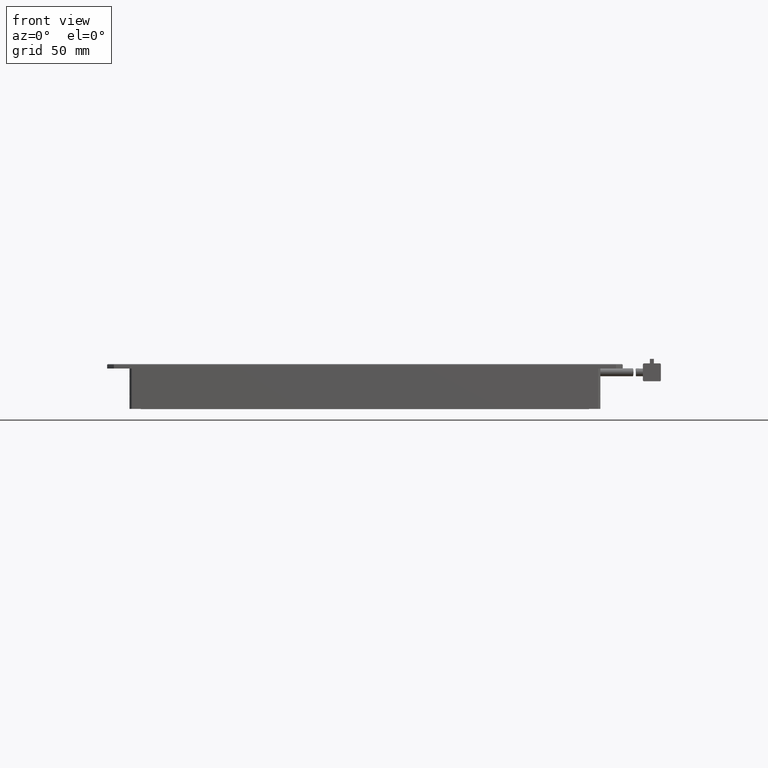
[diagram: clean part render]
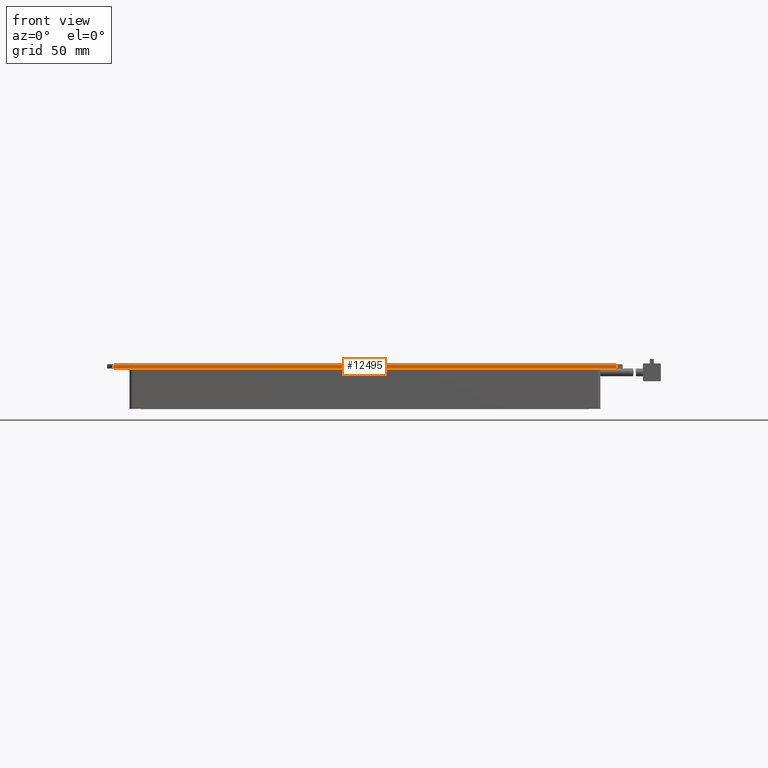
[diagram: same view with one face highlighted and labeled with its STEP entity id]
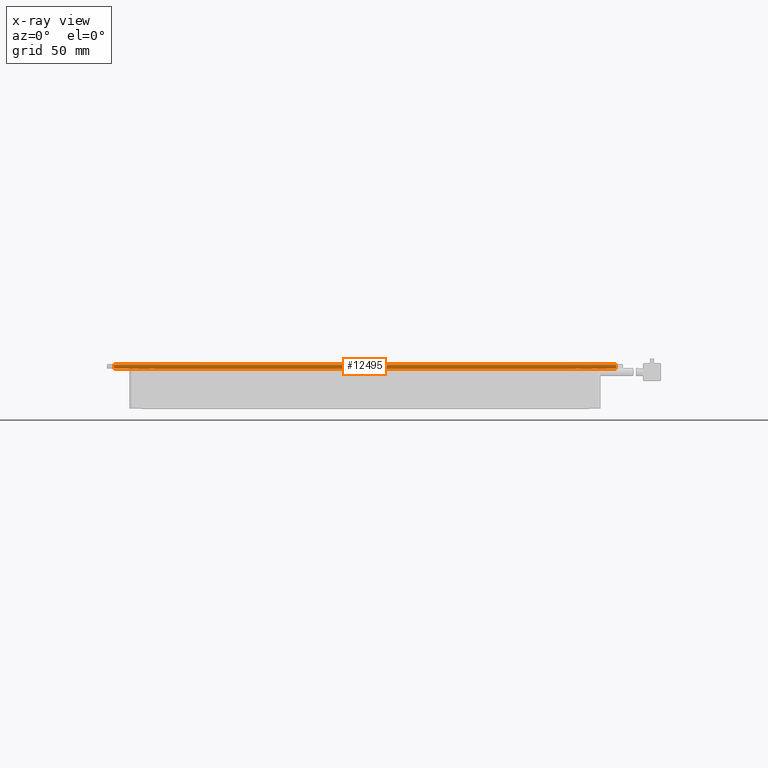
[diagram: x-ray of the same camera — body ghosted, the highlighted face saturated]
A machine part, front view. The second image highlights one B-rep face of the part: STEP entity #12495.
The next image is the same camera in x-ray: the body ghosted, the highlighted face saturated — about 0% of this face is hidden behind the body in this view.
In plain terms, the highlighted planar face has unit normal (0, 1, 0).
Its self-contained STEP definition (entity closure, byte-faithful):
#32 = VECTOR ( 'NONE', #21816, 1000.000000000000000 ) ;
#1267 = VERTEX_POINT ( 'NONE', #5427 ) ;
#1363 = EDGE_CURVE ( 'NONE', #7415, #1267, #2441, .T. ) ;
#2441 = LINE ( 'NONE', #9673, #6569 ) ;
#2877 = EDGE_CURVE ( 'NONE', #9953, #1267, #13340, .T. ) ;
#4732 = FACE_OUTER_BOUND ( 'NONE', #5302, .T. ) ;
#5222 = CARTESIAN_POINT ( 'NONE',  ( -93.33424941752387800, -139.3787539827808400, 1.999999999976353100 ) ) ;
#5302 = EDGE_LOOP ( 'NONE', ( #19197, #6321, #19000, #9517 ) ) ;
#5427 = CARTESIAN_POINT ( 'NONE',  ( 130.6657505824760800, -139.3787539827808400, 1.699999999976331800 ) ) ;
#6321 = ORIENTED_EDGE ( 'NONE', *, *, #18893, .F. ) ;
#6569 = VECTOR ( 'NONE', #9990, 1000.000000000000000 ) ;
#7359 = DIRECTION ( 'NONE',  ( 1.000000000000000000, 0.0000000000000000000, -0.0000000000000000000 ) ) ;
#7415 = VERTEX_POINT ( 'NONE', #17440 ) ;
#7558 = VECTOR ( 'NONE', #13866, 1000.000000000000000 ) ;
#7992 = CARTESIAN_POINT ( 'NONE',  ( -93.33424941752387800, -139.3787539827808400, -2.364688306277784600E-011 ) ) ;
#8074 = CARTESIAN_POINT ( 'NONE',  ( -93.33424941752387800, -139.3787539827808400, 1.999999999976353100 ) ) ;
#9181 = VERTEX_POINT ( 'NONE', #7992 ) ;
#9517 = ORIENTED_EDGE ( 'NONE', *, *, #1363, .T. ) ;
#9673 = CARTESIAN_POINT ( 'NONE',  ( 130.6657505824761100, -139.3787539827808400, 1.999999999976353100 ) ) ;
#9810 = DIRECTION ( 'NONE',  ( 0.0000000000000000000, -0.0000000000000000000, 1.000000000000000000 ) ) ;
#9953 = VERTEX_POINT ( 'NONE', #11754 ) ;
#9990 = DIRECTION ( 'NONE',  ( 0.0000000000000000000, 0.0000000000000000000, 1.000000000000000000 ) ) ;
#11488 = PLANE ( 'NONE',  #22014 ) ;
#11754 = CARTESIAN_POINT ( 'NONE',  ( -93.33424941752387800, -139.3787539827808400, 1.699999999976330700 ) ) ;
#12495 = ADVANCED_FACE ( 'NONE', ( #4732 ), #11488, .F. ) ;
#12539 = CARTESIAN_POINT ( 'NONE',  ( 133.6657505824760800, -139.3787539827808400, -2.364688306277784600E-011 ) ) ;
#13340 = LINE ( 'NONE', #19593, #32 ) ;
#13866 = DIRECTION ( 'NONE',  ( 0.0000000000000000000, -0.0000000000000000000, 1.000000000000000000 ) ) ;
#14220 = VECTOR ( 'NONE', #7359, 1000.000000000000000 ) ;
#16725 = LINE ( 'NONE', #5222, #7558 ) ;
#17267 = EDGE_CURVE ( 'NONE', #9181, #7415, #19355, .T. ) ;
#17440 = CARTESIAN_POINT ( 'NONE',  ( 130.6657505824761100, -139.3787539827808400, -2.364720832342959200E-011 ) ) ;
#18893 = EDGE_CURVE ( 'NONE', #9181, #9953, #16725, .T. ) ;
#19000 = ORIENTED_EDGE ( 'NONE', *, *, #17267, .T. ) ;
#19197 = ORIENTED_EDGE ( 'NONE', *, *, #2877, .F. ) ;
#19355 = LINE ( 'NONE', #12539, #14220 ) ;
#19593 = CARTESIAN_POINT ( 'NONE',  ( -93.33424941752387800, -139.3787539827808400, 1.699999999976330700 ) ) ;
#20145 = DIRECTION ( 'NONE',  ( 0.0000000000000000000, 1.000000000000000000, 0.0000000000000000000 ) ) ;
#21816 = DIRECTION ( 'NONE',  ( 1.000000000000000000, 0.0000000000000000000, -0.0000000000000000000 ) ) ;
#22014 = AXIS2_PLACEMENT_3D ( 'NONE', #8074, #20145, #9810 ) ;